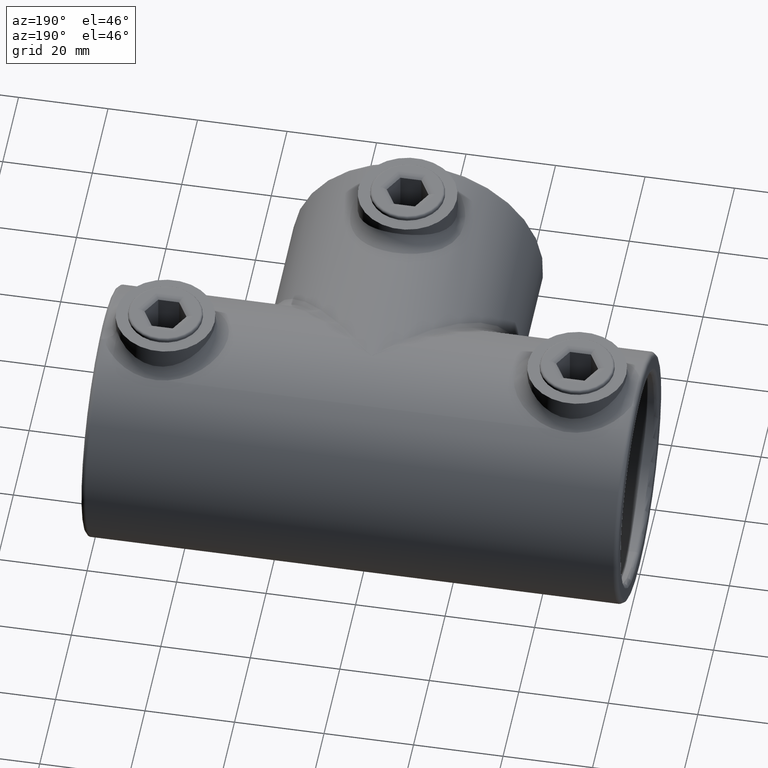
[diagram: clean part render]
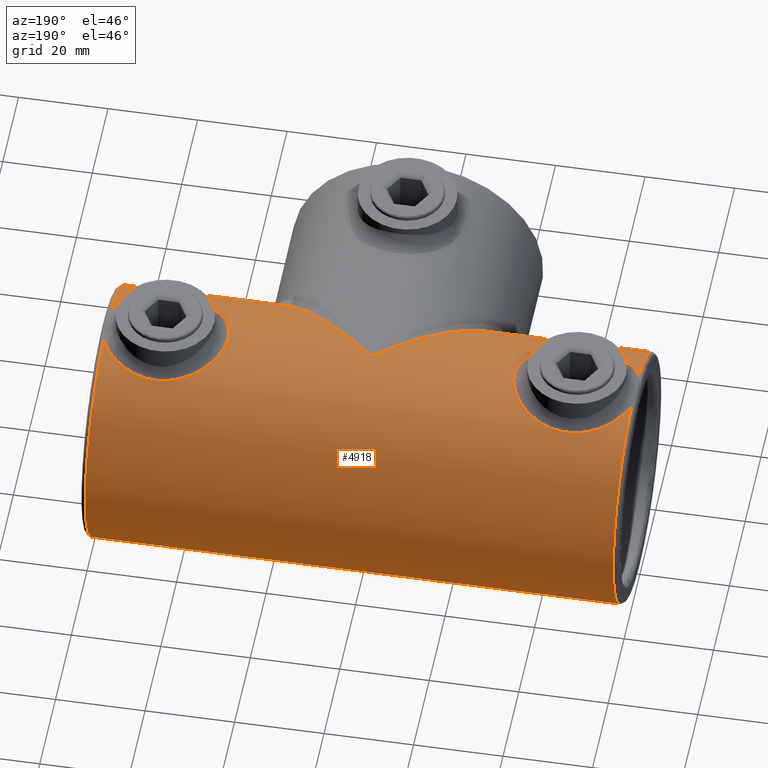
[diagram: same view with one face highlighted and labeled with its STEP entity id]
A machine part, auxiliary view. The second image highlights one B-rep face of the part: STEP entity #4918.
In plain terms, the highlighted cylindrical surface (bore or boss wall) has radius 28 mm, axis along (-1, -0, -0).
Its self-contained STEP definition (entity closure, byte-faithful):
#3 = CARTESIAN_POINT ( 'NONE',  ( 33.23783325114604281, 65.25398354105819010, 27.51205655742284506 ) ) ;
#19 = CARTESIAN_POINT ( 'NONE',  ( 33.61462922876347648, 54.05799378672582378, 27.37002756057459152 ) ) ;
#36 = CARTESIAN_POINT ( 'NONE',  ( 34.95313876273680620, 67.80232063916972152, 26.89709235287382327 ) ) ;
#52 = CARTESIAN_POINT ( 'NONE',  ( 32.09966898758438703, 58.44408104878286991, 27.95944104439999478 ) ) ;
#68 = CARTESIAN_POINT ( 'NONE',  ( 32.40013101584580113, 56.89763110459560380, 27.83834964366308640 ) ) ;
#84 = CARTESIAN_POINT ( 'NONE',  ( -46.30879597680501547, 72.64699060820608167, 24.98106550555604244 ) ) ;
#103 = CARTESIAN_POINT ( 'NONE',  ( -54.95850227854182890, 69.72388811440109180, 26.25836042713161333 ) ) ;
#105 = B_SPLINE_CURVE_WITH_KNOTS ( 'NONE', 3,
 ( #1168, #379, #3818, #3855, #1516, #1548, #1896, #1198, #461, #2762, #854, #1983, #788, #3130, #3511, #2712, #3887, #4643, #4318, #2357, #3158, #1566, #4333, #802, #2373, #2384, #837, #3871, #4264, #2744, #4687, #1953, #1247, #2339, #1999, #19, #3543, #1611, #68, #4301, #52, #2017, #1581, #2728, #3498, #4701, #3937, #820, #3, #443, #2778, #36, #3144, #4657, #411, #397, #4673, #1216, #3903, #1630, #3101, #3527, #1965, #427, #3484, #3116, #1183, #4285, #1596, #1232, #3921, #1265, #494, #3175, #3609, #2453, #510, #1665, #4008, #3955, #2812, #4027, #2032, #1280, #2434, #3193, #1715, #2099, #152 ),
 .UNSPECIFIED., .F., .F.,
 ( 4, 2, 2, 2, 2, 2, 2, 2, 2, 2, 2, 2, 2, 2, 2, 2, 2, 2, 2, 2, 2, 1, 2, 2, 2, 2, 2, 2, 2, 2, 2, 2, 2, 2, 2, 2, 2, 2, 2, 2, 2, 2, 2, 2, 4 ),
 ( 0.004836967980946971397, 0.007181495595282024608, 0.009526023209617078685, 0.01069828701678461266, 0.01187055082395214491, 0.01421507843828721460, 0.01655960605262228255, 0.01890413366695734704, 0.02124866128129241846, 0.02359318889562748295, 0.02476545270279502040, 0.02593771650996255437, 0.02828224412429761886, 0.02945450793146514243, 0.03062677173863266253, 0.03297129935296772701, 0.03414356316013528181, 0.03531582696730282966, 0.03766035458163791844, 0.04000488219597301415, 0.04117714600314056894, 0.04234940981030812374, 0.04352167361747567853, 0.04469393742464323332, 0.04703846503897831516, 0.04938299265331340393, 0.05172752026764848576, 0.05289978407481605444, 0.05407204788198363005, 0.05641657549631876045, 0.05758883930348631525, 0.05876110311065386310, 0.06110563072498895187, 0.06227789453215649279, 0.06345015833932403371, 0.06579468595365912942, 0.06696694976082666340, 0.06813921356799419737, 0.07048374118232926533, 0.07282826879666431941, 0.07400053260383183951, 0.07517279641099935961, 0.07751732402533435817, 0.07868958783250183664, 0.07986185163966932898 ),
 .UNSPECIFIED. ) ;
#120 = CARTESIAN_POINT ( 'NONE',  ( -52.33306222219019332, 71.28300110764233466, 25.62670619280205031 ) ) ;
#122 = EDGE_CURVE ( 'NONE', #3719, #3362, #2088, .T. ) ;
#136 = CARTESIAN_POINT ( 'NONE',  ( -43.20254471399336893, 72.39521612776513848, 25.10703612507757754 ) ) ;
#152 = CARTESIAN_POINT ( 'NONE',  ( 58.99999999999407407, 64.69329896245807277, 27.60385742697910416 ) ) ;
#171 = CARTESIAN_POINT ( 'NONE',  ( -48.26456261938341186, 47.50648953766783933, 25.05840767580866668 ) ) ;
#192 = CARTESIAN_POINT ( 'NONE',  ( -33.25753204691351783, 65.25145595449924940, 27.50529820885960675 ) ) ;
#212 = CARTESIAN_POINT ( 'NONE',  ( -32.10153383943787020, 61.56989718445465343, 27.95868415164916243 ) ) ;
#229 = CARTESIAN_POINT ( 'NONE',  ( -34.26390610918249990, 53.09542084704803955, 27.13733755511541190 ) ) ;
#238 = CARTESIAN_POINT ( 'NONE',  ( 0.000000000000000000, 60.00000000000000000, -27.99999999999998934 ) ) ;
#245 = CARTESIAN_POINT ( 'NONE',  ( -49.78765328388684708, 47.82128847296555563, 25.21285670770802412 ) ) ;
#344 = CARTESIAN_POINT ( 'NONE',  ( -61.99999999999996447, 4.000000000000023981, 27.99999999999998224 ) ) ;
#379 = CARTESIAN_POINT ( 'NONE',  ( 58.68823744594929082, 54.60219980315092414, 27.48407580148873208 ) ) ;
#397 = CARTESIAN_POINT ( 'NONE',  ( 36.91351453545480155, 69.62653889311268074, 26.29423754882653341 ) ) ;
#411 = CARTESIAN_POINT ( 'NONE',  ( 36.61451686724395671, 69.38979436207570473, 26.37995290323840081 ) ) ;
#427 = CARTESIAN_POINT ( 'NONE',  ( 42.80477059685132701, 72.33165840178820361, 25.13859301248776390 ) ) ;
#443 = CARTESIAN_POINT ( 'NONE',  ( 33.61416416238178329, 65.94138636085300220, 27.37019039865251813 ) ) ;
#461 = CARTESIAN_POINT ( 'NONE',  ( 54.96703471519633410, 50.28240338353742800, 26.26071116599263888 ) ) ;
#478 = CARTESIAN_POINT ( 'NONE',  ( -58.66957322551382248, 65.39357178036732421, 27.47778551088791232 ) ) ;
#494 = CARTESIAN_POINT ( 'NONE',  ( 49.78344814202359458, 72.17981659702576280, 25.21232366276199599 ) ) ;
#510 = CARTESIAN_POINT ( 'NONE',  ( 53.37431934018697177, 70.77244402652816291, 25.84748068616124073 ) ) ;
#529 = CARTESIAN_POINT ( 'NONE',  ( -47.48286731240235525, 72.57903435786431601, 25.01537235324854791 ) ) ;
#548 = CARTESIAN_POINT ( 'NONE',  ( -58.28887568092149252, 66.06977746666086659, 27.33636981454471737 ) ) ;
#558 =( BOUNDED_CURVE ( )  B_SPLINE_CURVE ( 3, ( #3714, #1771, #2597, #1423 ),
 .UNSPECIFIED., .F., .F. ) 
 B_SPLINE_CURVE_WITH_KNOTS ( ( 4, 4 ),
 ( 1.570796326794896558, 4.712388980384689674 ),
 .UNSPECIFIED. ) 
 CURVE ( )  GEOMETRIC_REPRESENTATION_ITEM ( )  RATIONAL_B_SPLINE_CURVE ( ( 1.000000000000000000, 0.3333333333333333703, 0.3333333333333333703, 1.000000000000000000 ) ) 
 REPRESENTATION_ITEM ( '' )  );
#568 = CARTESIAN_POINT ( 'NONE',  ( -32.79135573919474922, 55.79162763318112894, 27.68426775218032887 ) ) ;
#587 = CARTESIAN_POINT ( 'NONE',  ( -37.82912122482883177, 70.29290970962460960, 26.04391397505346717 ) ) ;
#605 = CARTESIAN_POINT ( 'NONE',  ( -45.13482021622716900, 47.35896846491844769, 24.98408175604336279 ) ) ;
#612 = DIRECTION ( 'NONE',  ( 0.000000000000000000, 0.000000000000000000, 1.000000000000000000 ) ) ;
#619 = CARTESIAN_POINT ( 'NONE',  ( -32.00024553161858876, 59.20545658271513645, 27.99989984558637701 ) ) ;
#638 = CARTESIAN_POINT ( 'NONE',  ( -54.35468548517089005, 49.84697096276133976, 26.09544683268824983 ) ) ;
#693 = FACE_OUTER_BOUND ( 'NONE', #1259, .T. ) ;
#708 = CARTESIAN_POINT ( 'NONE',  ( -59.00000000000031264, 55.30670103755601730, 27.60385742698149869 ) ) ;
#710 = VERTEX_POINT ( 'NONE', #4740 ) ;
#788 = CARTESIAN_POINT ( 'NONE',  ( 51.28111952319273570, 48.26741861630446095, 25.42462561486858164 ) ) ;
#802 = CARTESIAN_POINT ( 'NONE',  ( 40.58407014068066587, 48.31775679846155214, 25.44786610116078762 ) ) ;
#820 = CARTESIAN_POINT ( 'NONE',  ( 32.63251963592746563, 63.83417119112418447, 27.74557136455647566 ) ) ;
#837 = CARTESIAN_POINT ( 'NONE',  ( 38.50758436250980310, 49.31209005449240124, 25.88078707898556274 ) ) ;
#844 = ORIENTED_EDGE ( 'NONE', *, *, #122, .T. ) ;
#854 = CARTESIAN_POINT ( 'NONE',  ( 53.37065636044621186, 49.22609333122932895, 25.84680921492095607 ) ) ;
#887 = CARTESIAN_POINT ( 'NONE',  ( -58.08427963872799182, 66.39564135729602867, 27.26170813937689275 ) ) ;
#903 = CARTESIAN_POINT ( 'NONE',  ( -51.97677469781872617, 71.44042161232090393, 25.55662638286360888 ) ) ;
#920 = CARTESIAN_POINT ( 'NONE',  ( -53.37139987387835305, 70.77389169518725964, 25.84685657656275026 ) ) ;
#938 = CARTESIAN_POINT ( 'NONE',  ( -56.94084061337667180, 67.92325570392871725, 26.86160075607027053 ) ) ;
#958 = CARTESIAN_POINT ( 'NONE',  ( -42.07076041500414476, 47.84219765168828786, 25.22413277275568788 ) ) ;
#960 = B_SPLINE_CURVE_WITH_KNOTS ( 'NONE', 3,
 ( #2417, #2399, #478, #548, #887, #3576, #938, #3972, #4416, #2833, #103, #4737, #920, #120, #903, #1331, #4350, #3592, #1682, #4380, #529, #4773, #84, #2068, #2797, #136, #2471, #4120, #4431, #1802, #1369, #2117, #587, #4504, #2957, #2924, #4791, #4846, #1787, #2133, #2152, #192, #3280, #2561, #976, #2488, #212, #4810, #3663, #619, #1752, #2524, #1030, #1734, #568, #4045, #2903, #229, #1351, #3642, #4060, #3301, #3681, #2505, #4451, #4832, #995, #958, #3318, #1420, #605, #1385, #4080, #1769, #171, #2884, #245, #2542, #2939, #3694, #3261, #4468, #1010, #638, #1402, #4865, #4102, #4487, #2171, #3335, #3711, #3749, #1563 ),
 .UNSPECIFIED., .F., .F.,
 ( 4, 2, 2, 2, 2, 2, 2, 2, 2, 2, 2, 2, 2, 2, 2, 2, 2, 2, 2, 2, 2, 2, 2, 2, 2, 2, 2, 2, 2, 2, 2, 2, 2, 2, 2, 2, 2, 1, 2, 2, 2, 2, 2, 2, 2, 2, 4 ),
 ( 0.04720318589073586868, 0.04837548890809657831, 0.04954779192545728794, 0.05189239796017872108, 0.05306470097753945153, 0.05423700399490018198, 0.05658161002962162900, 0.05775391304698236639, 0.05892621606434310377, 0.06127082209906457855, 0.06244312511642531593, 0.06361542813378605332, 0.06596003416850752810, 0.06713233718586825161, 0.06830464020322898899, 0.07064924623795040826, 0.07299385227267185527, 0.07416615529003255103, 0.07533845830739326066, 0.07768306434211463829, 0.07885536735947532017, 0.08002767037683601592, 0.08237227641155739355, 0.08354457942891807543, 0.08471688244627877118, 0.08706148848100017656, 0.08823379149836085844, 0.08940609451572154032, 0.09175070055044293182, 0.09292300356780361370, 0.09409530658516429558, 0.09643991261988565933, 0.09878451865460705084, 0.1011291246893284423, 0.1034737307240498061, 0.1058183367587711976, 0.1069906397761318795, 0.1081629427934925614, 0.1093352458108532432, 0.1105075488282139390, 0.1128521548629352750, 0.1140244578802959430, 0.1151967608976566110, 0.1175413669323779192, 0.1187136699497386011, 0.1198859729670992691, 0.1222305790018206190 ),
 .UNSPECIFIED. ) ;
#976 = CARTESIAN_POINT ( 'NONE',  ( -32.39794225818243945, 63.09121556881490278, 27.83923160930030960 ) ) ;
#995 = CARTESIAN_POINT ( 'NONE',  ( -40.58394212206653862, 48.31768091780611485, 25.44783788340435748 ) ) ;
#1010 = CARTESIAN_POINT ( 'NONE',  ( -54.03079516275666094, 49.63598108129287567, 26.01215463016730212 ) ) ;
#1030 = CARTESIAN_POINT ( 'NONE',  ( -32.42005296805938031, 56.90131753070124176, 27.83055073791554079 ) ) ;
#1117 = CIRCLE ( 'NONE', #3885, 27.99999999999998934 ) ;
#1168 = CARTESIAN_POINT ( 'NONE',  ( 59.00000000000000000, 55.30670103755531386, 27.60385742698138145 ) ) ;
#1183 = CARTESIAN_POINT ( 'NONE',  ( 45.13499264586995707, 72.62600393246262342, 24.99170463974850165 ) ) ;
#1198 = CARTESIAN_POINT ( 'NONE',  ( 55.27128899434127618, 50.51817010483392778, 26.34697251369245308 ) ) ;
#1205 = ORIENTED_EDGE ( 'NONE', *, *, #2003, .T. ) ;
#1216 = CARTESIAN_POINT ( 'NONE',  ( 38.48812245670474397, 70.69439622283432811, 25.87995443897284531 ) ) ;
#1232 = CARTESIAN_POINT ( 'NONE',  ( 47.47354607037458862, 72.59483688273770952, 25.00772281421970789 ) ) ;
#1247 = CARTESIAN_POINT ( 'NONE',  ( 34.97284852004398914, 52.20025724642832188, 26.89349578880282010 ) ) ;
#1259 = EDGE_LOOP ( 'NONE', ( #1205, #1500 ) ) ;
#1265 = CARTESIAN_POINT ( 'NONE',  ( 49.02155891028827028, 72.35223326635875196, 25.12830137805802977 ) ) ;
#1280 = CARTESIAN_POINT ( 'NONE',  ( 57.43623833755753338, 67.33125971074478855, 27.03088910778972220 ) ) ;
#1329 = EDGE_LOOP ( 'NONE', ( #2596, #844 ) ) ;
#1331 = CARTESIAN_POINT ( 'NONE',  ( -51.25791655724212603, 71.72484137981024332, 25.42739651162165870 ) ) ;
#1333 = EDGE_CURVE ( 'NONE', #710, #4983, #558, .T. ) ;
#1349 = DIRECTION ( 'NONE',  ( -1.000000000000000000, -0.000000000000000000, -0.000000000000000000 ) ) ;
#1351 = CARTESIAN_POINT ( 'NONE',  ( -34.49491117678601171, 52.78554830616254634, 27.05635196194027259 ) ) ;
#1369 = CARTESIAN_POINT ( 'NONE',  ( -39.86539036742000519, 71.38903377708051323, 25.58190835981963929 ) ) ;
#1385 = CARTESIAN_POINT ( 'NONE',  ( -46.31641236573805287, 47.35306409702160835, 24.98109319329025624 ) ) ;
#1386 = CARTESIAN_POINT ( 'NONE',  ( -59.00000000000000000, 60.00000000000000000, 0.000000000000000000 ) ) ;
#1402 = CARTESIAN_POINT ( 'NONE',  ( -55.28990826950792581, 50.51278170376430410, 26.34801823884017935 ) ) ;
#1420 = CARTESIAN_POINT ( 'NONE',  ( -44.35832974182786614, 47.42246302205005293, 25.01646938614408100 ) ) ;
#1423 = CARTESIAN_POINT ( 'NONE',  ( 0.000000000000000000, 60.00000000000000000, -27.99999999999998934 ) ) ;
#1500 = ORIENTED_EDGE ( 'NONE', *, *, #4268, .T. ) ;
#1516 = CARTESIAN_POINT ( 'NONE',  ( 56.93976968789193194, 52.07602185292915919, 26.86130399377459099 ) ) ;
#1531 = FACE_OUTER_BOUND ( 'NONE', #1329, .T. ) ;
#1532 = CARTESIAN_POINT ( 'NONE',  ( -61.99999999999996447, 4.000000000000031086, -28.00000000000000000 ) ) ;
#1548 = CARTESIAN_POINT ( 'NONE',  ( 56.13440553071175998, 51.26833618335455611, 26.60522162045245764 ) ) ;
#1563 = CARTESIAN_POINT ( 'NONE',  ( -59.00000000000031264, 55.30670103755601730, 27.60385742698149869 ) ) ;
#1566 = CARTESIAN_POINT ( 'NONE',  ( 42.07367091263877512, 47.85716137456225283, 25.23016840685283668 ) ) ;
#1581 = CARTESIAN_POINT ( 'NONE',  ( 31.98018928351267220, 59.99851215473437094, 28.00809484697675344 ) ) ;
#1596 = CARTESIAN_POINT ( 'NONE',  ( 46.69653255175000339, 72.64915459883226845, 24.97997018222974930 ) ) ;
#1611 = CARTESIAN_POINT ( 'NONE',  ( 32.64015965956132703, 56.14439413991392769, 27.74256259645498801 ) ) ;
#1630 = CARTESIAN_POINT ( 'NONE',  ( 39.87292666185919643, 71.37539253991420196, 25.58566417486385802 ) ) ;
#1665 = CARTESIAN_POINT ( 'NONE',  ( 54.03457122131157320, 70.38003097786270246, 26.00918620839665962 ) ) ;
#1682 = CARTESIAN_POINT ( 'NONE',  ( -49.03481157449692773, 72.36472972646019741, 25.12229595051169539 ) ) ;
#1715 = CARTESIAN_POINT ( 'NONE',  ( 58.66738197081116368, 65.39753465227002494, 27.47696901238640521 ) ) ;
#1732 = DIRECTION ( 'NONE',  ( 0.000000000000000000, 0.000000000000000000, -1.000000000000000000 ) ) ;
#1734 = CARTESIAN_POINT ( 'NONE',  ( -32.65595027262565964, 56.15509047756972905, 27.73730445060507321 ) ) ;
#1752 = CARTESIAN_POINT ( 'NONE',  ( -32.08191972769308364, 58.42822563745645681, 27.96636642745528789 ) ) ;
#1754 = AXIS2_PLACEMENT_3D ( 'NONE', #2521, #1349, #1732 ) ;
#1769 = CARTESIAN_POINT ( 'NONE',  ( -47.49000777129938200, 47.42169726737578372, 25.01574038279444423 ) ) ;
#1771 = CARTESIAN_POINT ( 'NONE',  ( 61.99999999999996447, 4.000000000000023981, 27.99999999999998934 ) ) ;
#1787 = CARTESIAN_POINT ( 'NONE',  ( -34.46479554477448914, 67.20380668209564590, 27.06526485557807860 ) ) ;
#1802 = CARTESIAN_POINT ( 'NONE',  ( -40.57949851757029336, 71.68022634046877783, 25.44877932342552640 ) ) ;
#1820 = EDGE_CURVE ( 'NONE', #4983, #710, #4457, .T. ) ;
#1845 = EDGE_CURVE ( 'NONE', #3362, #3719, #105, .T. ) ;
#1891 = CYLINDRICAL_SURFACE ( 'NONE', #4654, 27.99999999999998934 ) ;
#1896 = CARTESIAN_POINT ( 'NONE',  ( 55.85439038340667395, 51.01073211700686016, 26.51907090615956974 ) ) ;
#1953 = CARTESIAN_POINT ( 'NONE',  ( 35.22796558766095387, 51.91497985880866395, 26.80884473830331416 ) ) ;
#1965 = CARTESIAN_POINT ( 'NONE',  ( 42.05303145850319169, 72.15260660127718495, 25.22660768335943260 ) ) ;
#1983 = CARTESIAN_POINT ( 'NONE',  ( 51.99836921126482991, 48.55254802101755729, 25.55563449982791369 ) ) ;
#1999 = CARTESIAN_POINT ( 'NONE',  ( 34.25604048052152706, 53.10652140212542349, 27.14012554221046969 ) ) ;
#2003 = EDGE_CURVE ( 'NONE', #2337, #3849, #960, .T. ) ;
#2017 = CARTESIAN_POINT ( 'NONE',  ( 32.01990322307592862, 59.22116387730743270, 27.99186741880622620 ) ) ;
#2032 = CARTESIAN_POINT ( 'NONE',  ( 56.94780569464806064, 67.91564025591247855, 26.86389386654943578 ) ) ;
#2068 = CARTESIAN_POINT ( 'NONE',  ( -45.13893905662382622, 72.64086526050212456, 24.98416591390576968 ) ) ;
#2088 = CIRCLE ( 'NONE', #1754, 27.99999999999998934 ) ;
#2099 = CARTESIAN_POINT ( 'NONE',  ( 58.84251477768471261, 65.04917407342145452, 27.54335036583856322 ) ) ;
#2117 = CARTESIAN_POINT ( 'NONE',  ( -38.48211181386540858, 70.69126839031218879, 25.88128485821368585 ) ) ;
#2133 = CARTESIAN_POINT ( 'NONE',  ( -33.82587652098776942, 66.25503752950585579, 27.29432823149110376 ) ) ;
#2152 = CARTESIAN_POINT ( 'NONE',  ( -33.62672916010239987, 65.92811779253619875, 27.36743756068801758 ) ) ;
#2171 = CARTESIAN_POINT ( 'NONE',  ( -57.42740910980608504, 52.68543018121773969, 27.02945245185090073 ) ) ;
#2337 = VERTEX_POINT ( 'NONE', #4425 ) ;
#2339 = CARTESIAN_POINT ( 'NONE',  ( 34.48554244580092387, 52.79760360930736596, 27.05959328954497067 ) ) ;
#2357 = CARTESIAN_POINT ( 'NONE',  ( 43.21273899851131262, 47.60297892543189135, 25.10614313033337908 ) ) ;
#2373 = CARTESIAN_POINT ( 'NONE',  ( 39.87139577856007122, 48.60876099533112438, 25.58086292627344704 ) ) ;
#2384 = CARTESIAN_POINT ( 'NONE',  ( 38.84338391838655724, 49.12609455859513474, 25.80297267719275212 ) ) ;
#2399 = CARTESIAN_POINT ( 'NONE',  ( -58.84377228696686046, 65.04633243375154450, 27.54383351079591336 ) ) ;
#2417 = CARTESIAN_POINT ( 'NONE',  ( -59.00000000000000711, 64.69329896244467193, 27.60385742698138145 ) ) ;
#2434 = CARTESIAN_POINT ( 'NONE',  ( 58.08686603875990073, 66.39155737381175015, 27.26264987236705295 ) ) ;
#2453 = CARTESIAN_POINT ( 'NONE',  ( 51.98452127575581017, 71.45391113032771102, 25.55280274147469299 ) ) ;
#2471 = CARTESIAN_POINT ( 'NONE',  ( -42.81594023746912825, 72.31887511791104828, 25.14468859607817564 ) ) ;
#2488 = CARTESIAN_POINT ( 'NONE',  ( -32.16163419260200840, 61.95436451419789847, 27.93429911270249022 ) ) ;
#2505 = CARTESIAN_POINT ( 'NONE',  ( -37.85385927551769214, 49.69061197459402024, 26.03746687210477972 ) ) ;
#2521 = CARTESIAN_POINT ( 'NONE',  ( 59.00000000000000000, 60.00000000000000000, 0.000000000000000000 ) ) ;
#2524 = CARTESIAN_POINT ( 'NONE',  ( -32.32048141586449930, 57.28189557362897943, 27.87039540045500630 ) ) ;
#2536 = DIRECTION ( 'NONE',  ( -1.000000000000000000, -0.000000000000000000, -0.000000000000000000 ) ) ;
#2542 = CARTESIAN_POINT ( 'NONE',  ( -50.16581214233209352, 47.92238236944426433, 25.26157957459813730 ) ) ;
#2543 = DIRECTION ( 'NONE',  ( 1.000000000000000000, 0.000000000000000000, 0.000000000000000000 ) ) ;
#2553 = CARTESIAN_POINT ( 'NONE',  ( 60.00000000000000000, 60.00000000000000000, 0.000000000000000000 ) ) ;
#2561 = CARTESIAN_POINT ( 'NONE',  ( -32.62969754297672154, 63.82716899262930355, 27.74666669861307966 ) ) ;
#2596 = ORIENTED_EDGE ( 'NONE', *, *, #1845, .T. ) ;
#2597 = CARTESIAN_POINT ( 'NONE',  ( 61.99999999999997868, 4.000000000000017764, -27.99999999999997868 ) ) ;
#2712 = CARTESIAN_POINT ( 'NONE',  ( 47.49935912024092488, 47.40797604633315387, 25.00913943080546176 ) ) ;
#2728 = CARTESIAN_POINT ( 'NONE',  ( 32.01971820188004614, 60.77638638369941049, 27.99194281671716311 ) ) ;
#2744 = CARTESIAN_POINT ( 'NONE',  ( 36.60148152200485328, 50.60047116789421295, 26.37952869773125641 ) ) ;
#2762 = CARTESIAN_POINT ( 'NONE',  ( 54.02730457167832157, 49.61496294851457378, 26.00725947144708528 ) ) ;
#2778 = CARTESIAN_POINT ( 'NONE',  ( 34.47102243091927676, 67.21231371891168749, 27.06307309171332776 ) ) ;
#2797 = CARTESIAN_POINT ( 'NONE',  ( -44.36236610387636858, 72.57834885756092547, 25.01606930309520749 ) ) ;
#2800 = FACE_BOUND ( 'NONE', #4101, .T. ) ;
#2812 = CARTESIAN_POINT ( 'NONE',  ( 55.85087854566571508, 68.99241120204538902, 26.51800496616356284 ) ) ;
#2833 = CARTESIAN_POINT ( 'NONE',  ( -55.26002435002455115, 69.49083554304057486, 26.34373285371954410 ) ) ;
#2884 = CARTESIAN_POINT ( 'NONE',  ( -49.02870789854465983, 47.64923339859240059, 25.12902151257971539 ) ) ;
#2903 = CARTESIAN_POINT ( 'NONE',  ( -33.61588778482445861, 54.05501416759178568, 27.36951506496036046 ) ) ;
#2924 = CARTESIAN_POINT ( 'NONE',  ( -36.02872576328820742, 68.88352899016057052, 26.55471406108839716 ) ) ;
#2939 = CARTESIAN_POINT ( 'NONE',  ( -51.28300574991963856, 48.26815357017183317, 25.42496372232585955 ) ) ;
#2957 = CARTESIAN_POINT ( 'NONE',  ( -36.60680788216316017, 69.38347199046587832, 26.38219815688850289 ) ) ;
#3101 = CARTESIAN_POINT ( 'NONE',  ( 40.58924316380594632, 71.66799332116160315, 25.45355964424969386 ) ) ;
#3116 = CARTESIAN_POINT ( 'NONE',  ( 44.35125355173905604, 72.56219377259706960, 25.02383990763032173 ) ) ;
#3122 = ORIENTED_EDGE ( 'NONE', *, *, #1820, .T. ) ;
#3130 = CARTESIAN_POINT ( 'NONE',  ( 49.78996927485246715, 47.80621078476099939, 25.20667685665034696 ) ) ;
#3144 = CARTESIAN_POINT ( 'NONE',  ( 35.75364060534662514, 68.62452437583193898, 26.64019567100699248 ) ) ;
#3158 = CARTESIAN_POINT ( 'NONE',  ( 42.83131459021698362, 47.67790814882535955, 25.14310999325249796 ) ) ;
#3175 = CARTESIAN_POINT ( 'NONE',  ( 50.15863880399334107, 72.07955365474622056, 25.26064756059827232 ) ) ;
#3193 = CARTESIAN_POINT ( 'NONE',  ( 58.28998341257873506, 66.06773897556558950, 27.33678382975035603 ) ) ;
#3242 = ORIENTED_EDGE ( 'NONE', *, *, #1333, .T. ) ;
#3261 = CARTESIAN_POINT ( 'NONE',  ( -53.03218220388827575, 49.06007229693195626, 25.77502533414704189 ) ) ;
#3280 = CARTESIAN_POINT ( 'NONE',  ( -33.08656301448886694, 64.89935741564926275, 27.57040951381096860 ) ) ;
#3281 = DIRECTION ( 'NONE',  ( 0.000000000000000000, 0.000000000000000000, -1.000000000000000000 ) ) ;
#3301 = CARTESIAN_POINT ( 'NONE',  ( -36.02988765268493410, 51.09316316262010815, 26.55171250314267439 ) ) ;
#3318 = CARTESIAN_POINT ( 'NONE',  ( -42.82671335202662988, 47.66395286789380492, 25.13643009924116711 ) ) ;
#3335 = CARTESIAN_POINT ( 'NONE',  ( -57.66118519114300511, 52.99282476018733945, 27.11097057546622580 ) ) ;
#3362 = VERTEX_POINT ( 'NONE', #3620 ) ;
#3448 = CARTESIAN_POINT ( 'NONE',  ( 0.000000000000000000, 60.00000000000000000, -27.99999999999998934 ) ) ;
#3484 = CARTESIAN_POINT ( 'NONE',  ( 43.95989643207902020, 72.51516473362767101, 25.04746127028916547 ) ) ;
#3498 = CARTESIAN_POINT ( 'NONE',  ( 32.09946000876549022, 61.55452713106689089, 27.95952581625687827 ) ) ;
#3511 = CARTESIAN_POINT ( 'NONE',  ( 49.03356137889558397, 47.63531089209779168, 25.12231250470609822 ) ) ;
#3527 = CARTESIAN_POINT ( 'NONE',  ( 40.95186910675536751, 71.79974074557445363, 25.39257793019671539 ) ) ;
#3543 = CARTESIAN_POINT ( 'NONE',  ( 33.24719810940196396, 54.72766486069721026, 27.50850701411159349 ) ) ;
#3576 = CARTESIAN_POINT ( 'NONE',  ( -57.43022375989664141, 67.33924066554423860, 27.02878803505847571 ) ) ;
#3592 = CARTESIAN_POINT ( 'NONE',  ( -49.78908212505113795, 72.19350843607766421, 25.20677596406385135 ) ) ;
#3609 = CARTESIAN_POINT ( 'NONE',  ( 51.26748183612394882, 71.73720799367509926, 25.42246398813104591 ) ) ;
#3620 = CARTESIAN_POINT ( 'NONE',  ( 59.00000000000000000, 55.30670103755531386, 27.60385742698138145 ) ) ;
#3642 = CARTESIAN_POINT ( 'NONE',  ( -34.97902252372550436, 52.19327869864117275, 26.89144096648621840 ) ) ;
#3663 = CARTESIAN_POINT ( 'NONE',  ( -31.99987805586028244, 60.39196568018288502, 28.00004974204086494 ) ) ;
#3681 = CARTESIAN_POINT ( 'NONE',  ( -36.60833501848675553, 50.59452436903537631, 26.37745610800382323 ) ) ;
#3694 = CARTESIAN_POINT ( 'NONE',  ( -51.99907959098322152, 48.55268087208869332, 25.55571719363138783 ) ) ;
#3711 = CARTESIAN_POINT ( 'NONE',  ( -58.31375222401559455, 53.93779708846401633, 27.34356628898876806 ) ) ;
#3714 = CARTESIAN_POINT ( 'NONE',  ( 0.000000000000000000, 60.00000000000000000, 27.99999999999998934 ) ) ;
#3719 = VERTEX_POINT ( 'NONE', #4583 ) ;
#3749 = CARTESIAN_POINT ( 'NONE',  ( -58.68861825289579315, 54.60306032652151487, 27.48422211051287434 ) ) ;
#3818 = CARTESIAN_POINT ( 'NONE',  ( 58.31150078250038860, 53.93320492541116806, 27.34268609424569618 ) ) ;
#3849 = VERTEX_POINT ( 'NONE', #708 ) ;
#3855 = CARTESIAN_POINT ( 'NONE',  ( 57.43185517880451130, 52.66208884088259623, 27.02930900238502332 ) ) ;
#3871 = CARTESIAN_POINT ( 'NONE',  ( 37.84989418444109077, 49.71222326922982404, 26.04243093048132351 ) ) ;
#3885 = AXIS2_PLACEMENT_3D ( 'NONE', #1386, #2543, #3281 ) ;
#3887 = CARTESIAN_POINT ( 'NONE',  ( 46.72156406965599018, 47.35154803877711061, 24.98032581514311801 ) ) ;
#3903 = CARTESIAN_POINT ( 'NONE',  ( 39.51872740040548138, 71.21411893428299322, 25.65694983062727985 ) ) ;
#3921 = CARTESIAN_POINT ( 'NONE',  ( 48.63404208964044528, 72.42437637298699826, 25.09260649785640851 ) ) ;
#3937 = CARTESIAN_POINT ( 'NONE',  ( 32.39889578020136440, 63.09698008466877184, 27.83884532341640750 ) ) ;
#3955 = CARTESIAN_POINT ( 'NONE',  ( 55.26743215324670899, 69.48490885759623836, 26.34586401269159595 ) ) ;
#3972 = CARTESIAN_POINT ( 'NONE',  ( -56.12932653621331980, 68.73658018629191702, 26.60362871265083484 ) ) ;
#4008 = CARTESIAN_POINT ( 'NONE',  ( 54.96622416293192259, 69.71809443495153857, 26.26050919412024598 ) ) ;
#4027 = CARTESIAN_POINT ( 'NONE',  ( 56.13395792854591093, 68.73225115417240261, 26.60506208156670027 ) ) ;
#4045 = CARTESIAN_POINT ( 'NONE',  ( -33.24687923949416302, 54.72820829188394498, 27.50862642872423081 ) ) ;
#4060 = CARTESIAN_POINT ( 'NONE',  ( -35.23305138548759885, 51.90948992144735996, 26.80718078226709977 ) ) ;
#4080 = CARTESIAN_POINT ( 'NONE',  ( -46.71015516629196895, 47.36617712327519314, 24.98774671819089477 ) ) ;
#4101 = EDGE_LOOP ( 'NONE', ( #3122, #3242 ) ) ;
#4102 = CARTESIAN_POINT ( 'NONE',  ( -56.67665001916390111, 51.81244073741073919, 26.77767650488161166 ) ) ;
#4120 = CARTESIAN_POINT ( 'NONE',  ( -42.05726907732790920, 72.13851933753737455, 25.23224914780018935 ) ) ;
#4264 = CARTESIAN_POINT ( 'NONE',  ( 37.52874947058693778, 49.92608027237971413, 26.12611357371138254 ) ) ;
#4268 = EDGE_CURVE ( 'NONE', #3849, #2337, #1117, .T. ) ;
#4285 = CARTESIAN_POINT ( 'NONE',  ( 45.52600586470185107, 72.64282468690018391, 24.98317412837826268 ) ) ;
#4301 = CARTESIAN_POINT ( 'NONE',  ( 32.15997099160465922, 58.05394979581662085, 27.93496893705628281 ) ) ;
#4318 = CARTESIAN_POINT ( 'NONE',  ( 44.36481072713492324, 47.42166159970626893, 25.01606725094867301 ) ) ;
#4333 = CARTESIAN_POINT ( 'NONE',  ( 41.69592694640905961, 47.96201091710471331, 25.28050617908430553 ) ) ;
#4350 = CARTESIAN_POINT ( 'NONE',  ( -50.89403056919159241, 71.85257878031995915, 25.36793599954695466 ) ) ;
#4380 = CARTESIAN_POINT ( 'NONE',  ( -47.87573487777368797, 72.53613949502597791, 25.03695828809134127 ) ) ;
#4416 = CARTESIAN_POINT ( 'NONE',  ( -55.84493453172773769, 68.99774765867280735, 26.51619801261170650 ) ) ;
#4425 = CARTESIAN_POINT ( 'NONE',  ( -59.00000000000000711, 64.69329896244467193, 27.60385742698138145 ) ) ;
#4431 = CARTESIAN_POINT ( 'NONE',  ( -41.68365579077659078, 72.03433447359060438, 25.28224293613989815 ) ) ;
#4451 = CARTESIAN_POINT ( 'NONE',  ( -38.50692389980583386, 49.29519055740321676, 25.87559847668611113 ) ) ;
#4457 =( BOUNDED_CURVE ( )  B_SPLINE_CURVE ( 3, ( #3448, #1532, #344, #4614 ),
 .UNSPECIFIED., .F., .F. ) 
 B_SPLINE_CURVE_WITH_KNOTS ( ( 4, 4 ),
 ( 4.712388980384689674, 7.853981633974482790 ),
 .UNSPECIFIED. ) 
 CURVE ( )  GEOMETRIC_REPRESENTATION_ITEM ( )  RATIONAL_B_SPLINE_CURVE ( ( 1.000000000000000000, 0.3333333333333333703, 0.3333333333333333703, 1.000000000000000000 ) ) 
 REPRESENTATION_ITEM ( '' )  );
#4468 = CARTESIAN_POINT ( 'NONE',  ( -53.36967700519325319, 49.24271626234975230, 25.85200037209381208 ) ) ;
#4487 = CARTESIAN_POINT ( 'NONE',  ( -56.93448827358319164, 52.09459733048880281, 26.86259183536826001 ) ) ;
#4504 = CARTESIAN_POINT ( 'NONE',  ( -36.90537502575043760, 69.62027619049466409, 26.29653299156028368 ) ) ;
#4583 = CARTESIAN_POINT ( 'NONE',  ( 58.99999999999407407, 64.69329896245807277, 27.60385742697910416 ) ) ;
#4614 = CARTESIAN_POINT ( 'NONE',  ( 0.000000000000000000, 60.00000000000000000, 27.99999999999998934 ) ) ;
#4643 = CARTESIAN_POINT ( 'NONE',  ( 45.14338246872321037, 47.35842356676451459, 24.98380595763452305 ) ) ;
#4654 = AXIS2_PLACEMENT_3D ( 'NONE', #2553, #2536, #612 ) ;
#4657 = CARTESIAN_POINT ( 'NONE',  ( 36.03475382111604830, 68.88907875924147106, 26.55286109162526742 ) ) ;
#4673 = CARTESIAN_POINT ( 'NONE',  ( 37.83711822473547670, 70.29804766919265546, 26.04186881815429189 ) ) ;
#4687 = CARTESIAN_POINT ( 'NONE',  ( 36.02605147408445418, 51.09654098891547136, 26.55287640127959747 ) ) ;
#4701 = CARTESIAN_POINT ( 'NONE',  ( 32.16007731970758243, 61.94628196233489348, 27.93492679728325001 ) ) ;
#4737 = CARTESIAN_POINT ( 'NONE',  ( -54.02736760934347160, 70.38452316050006630, 26.00737680465312351 ) ) ;
#4740 = CARTESIAN_POINT ( 'NONE',  ( 0.000000000000000000, 60.00000000000000000, 27.99999999999998934 ) ) ;
#4773 = CARTESIAN_POINT ( 'NONE',  ( -46.69958448832321096, 72.63434705627501842, 24.98748154195611804 ) ) ;
#4791 = CARTESIAN_POINT ( 'NONE',  ( -35.74800307262172083, 68.61910400626121032, 26.64196087163671578 ) ) ;
#4810 = CARTESIAN_POINT ( 'NONE',  ( -32.02056244858102474, 60.78931835616805301, 27.99159826080056490 ) ) ;
#4832 = CARTESIAN_POINT ( 'NONE',  ( -39.87195917946069557, 48.60870169931386187, 25.58081047882915371 ) ) ;
#4846 = CARTESIAN_POINT ( 'NONE',  ( -34.94569049661755855, 67.79391735081983938, 26.89957219278515055 ) ) ;
#4865 = CARTESIAN_POINT ( 'NONE',  ( -55.87052759278182634, 51.00311192172803487, 26.52124332720941169 ) ) ;
#4918 = ADVANCED_FACE ( 'NONE', ( #1531, #693, #2800 ), #1891, .T. ) ;
#4983 = VERTEX_POINT ( 'NONE', #238 ) ;